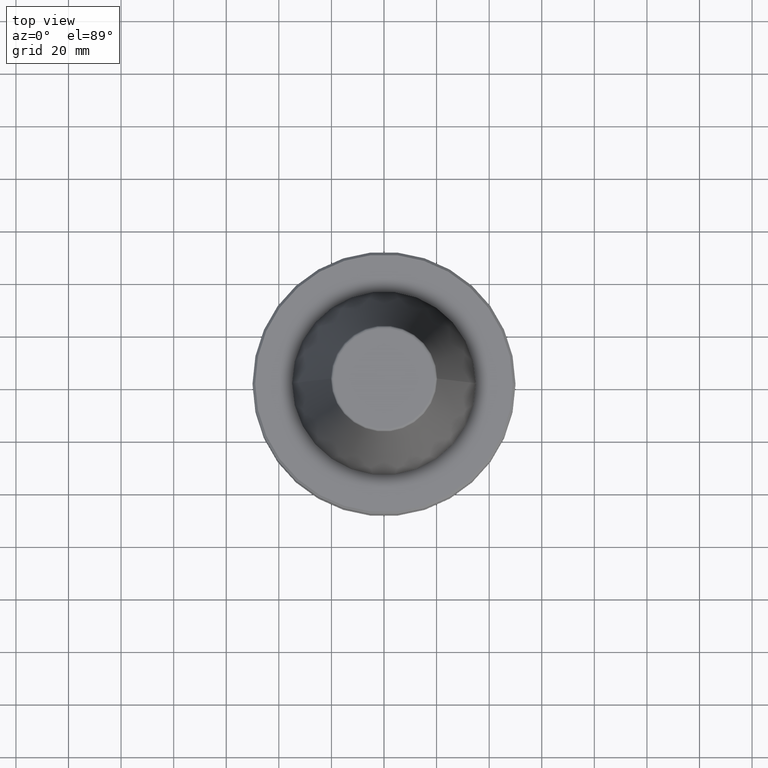
[diagram: clean part render]
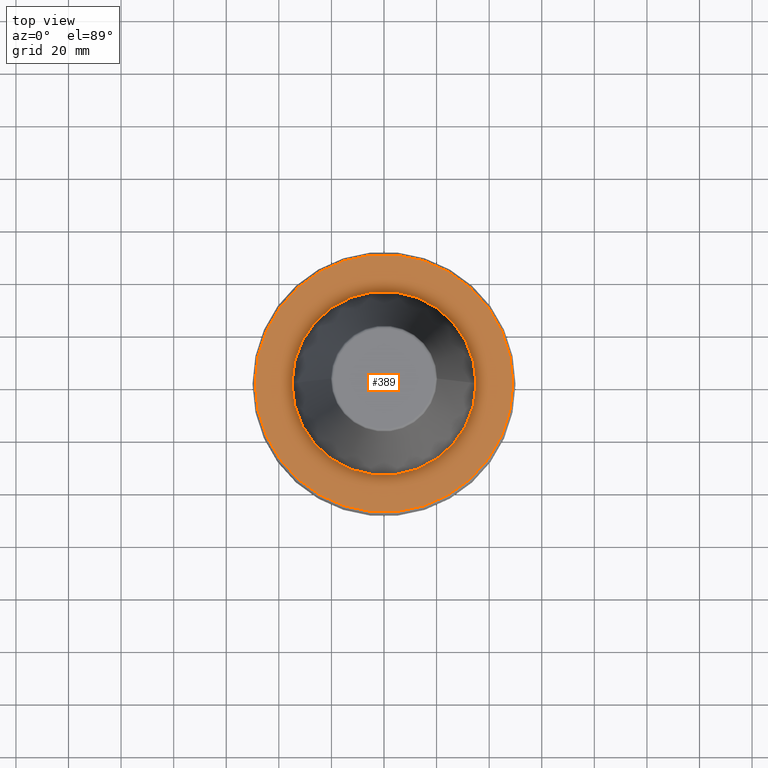
[diagram: same view with one face highlighted and labeled with its STEP entity id]
A machine part, top view. The second image highlights one B-rep face of the part: STEP entity #389.
In plain terms, the highlighted planar face has unit normal (0, 0, -1).
Its self-contained STEP definition (entity closure, byte-faithful):
#15 = VERTEX_POINT ( 'NONE', #788 ) ;
#27 = CIRCLE ( 'NONE', #690, 35.00000000000000000 ) ;
#54 = CARTESIAN_POINT ( 'NONE',  ( 0.0000000000000000000, 0.0000000000000000000, -2.999999999999988900 ) ) ;
#86 = EDGE_LOOP ( 'NONE', ( #398, #455 ) ) ;
#122 = CARTESIAN_POINT ( 'NONE',  ( 0.0000000000000000000, 0.0000000000000000000, -2.999999999999988900 ) ) ;
#156 = VERTEX_POINT ( 'NONE', #620 ) ;
#192 = DIRECTION ( 'NONE',  ( 1.000000000000000000, 0.0000000000000000000, 0.0000000000000000000 ) ) ;
#197 = ORIENTED_EDGE ( 'NONE', *, *, #879, .T. ) ;
#204 = CARTESIAN_POINT ( 'NONE',  ( 0.0000000000000000000, 0.0000000000000000000, -2.999999999999988900 ) ) ;
#271 = DIRECTION ( 'NONE',  ( -1.000000000000000000, 0.0000000000000000000, -0.0000000000000000000 ) ) ;
#278 = DIRECTION ( 'NONE',  ( 1.000000000000000000, 0.0000000000000000000, 0.0000000000000000000 ) ) ;
#307 = VERTEX_POINT ( 'NONE', #751 ) ;
#329 = VERTEX_POINT ( 'NONE', #641 ) ;
#389 = ADVANCED_FACE ( 'NONE', ( #718, #697 ), #999, .F. ) ;
#393 = CIRCLE ( 'NONE', #605, 49.00000000000000000 ) ;
#398 = ORIENTED_EDGE ( 'NONE', *, *, #471, .F. ) ;
#437 = DIRECTION ( 'NONE',  ( -0.0000000000000000000, -0.0000000000000000000, 1.000000000000000000 ) ) ;
#455 = ORIENTED_EDGE ( 'NONE', *, *, #820, .F. ) ;
#471 = EDGE_CURVE ( 'NONE', #15, #156, #27, .T. ) ;
#537 = CARTESIAN_POINT ( 'NONE',  ( 0.0000000000000000000, 35.00000000000000000, -3.000000000000002700 ) ) ;
#566 = ORIENTED_EDGE ( 'NONE', *, *, #817, .T. ) ;
#605 = AXIS2_PLACEMENT_3D ( 'NONE', #54, #742, #278 ) ;
#620 = CARTESIAN_POINT ( 'NONE',  ( -35.00000000000000000, 4.286263797015737300E-015, -2.999999999999995600 ) ) ;
#641 = CARTESIAN_POINT ( 'NONE',  ( 49.00000000000000000, 6.062001655779398500E-015, -2.999999999999988900 ) ) ;
#661 = AXIS2_PLACEMENT_3D ( 'NONE', #122, #801, #192 ) ;
#690 = AXIS2_PLACEMENT_3D ( 'NONE', #998, #735, #740 ) ;
#697 = FACE_OUTER_BOUND ( 'NONE', #852, .T. ) ;
#718 = FACE_BOUND ( 'NONE', #86, .T. ) ;
#735 = DIRECTION ( 'NONE',  ( -0.0000000000000000000, -0.0000000000000000000, 1.000000000000000000 ) ) ;
#740 = DIRECTION ( 'NONE',  ( 1.000000000000000000, 0.0000000000000000000, 0.0000000000000000000 ) ) ;
#742 = DIRECTION ( 'NONE',  ( -0.0000000000000000000, -0.0000000000000000000, 1.000000000000000000 ) ) ;
#751 = CARTESIAN_POINT ( 'NONE',  ( -49.00000000000000000, 0.0000000000000000000, -2.999999999999988900 ) ) ;
#775 = CIRCLE ( 'NONE', #661, 35.00000000000000000 ) ;
#782 = AXIS2_PLACEMENT_3D ( 'NONE', #204, #437, #978 ) ;
#788 = CARTESIAN_POINT ( 'NONE',  ( 35.00000000000000000, 0.0000000000000000000, -2.999999999999995600 ) ) ;
#801 = DIRECTION ( 'NONE',  ( -0.0000000000000000000, -0.0000000000000000000, 1.000000000000000000 ) ) ;
#817 = EDGE_CURVE ( 'NONE', #307, #329, #393, .T. ) ;
#820 = EDGE_CURVE ( 'NONE', #156, #15, #775, .T. ) ;
#852 = EDGE_LOOP ( 'NONE', ( #566, #197 ) ) ;
#879 = EDGE_CURVE ( 'NONE', #329, #307, #1000, .T. ) ;
#913 = DIRECTION ( 'NONE',  ( 0.0000000000000000000, 0.0000000000000000000, -1.000000000000000000 ) ) ;
#960 = AXIS2_PLACEMENT_3D ( 'NONE', #537, #913, #271 ) ;
#978 = DIRECTION ( 'NONE',  ( 1.000000000000000000, 0.0000000000000000000, 0.0000000000000000000 ) ) ;
#998 = CARTESIAN_POINT ( 'NONE',  ( 0.0000000000000000000, 0.0000000000000000000, -2.999999999999988900 ) ) ;
#999 = PLANE ( 'NONE',  #960 ) ;
#1000 = CIRCLE ( 'NONE', #782, 49.00000000000000000 ) ;